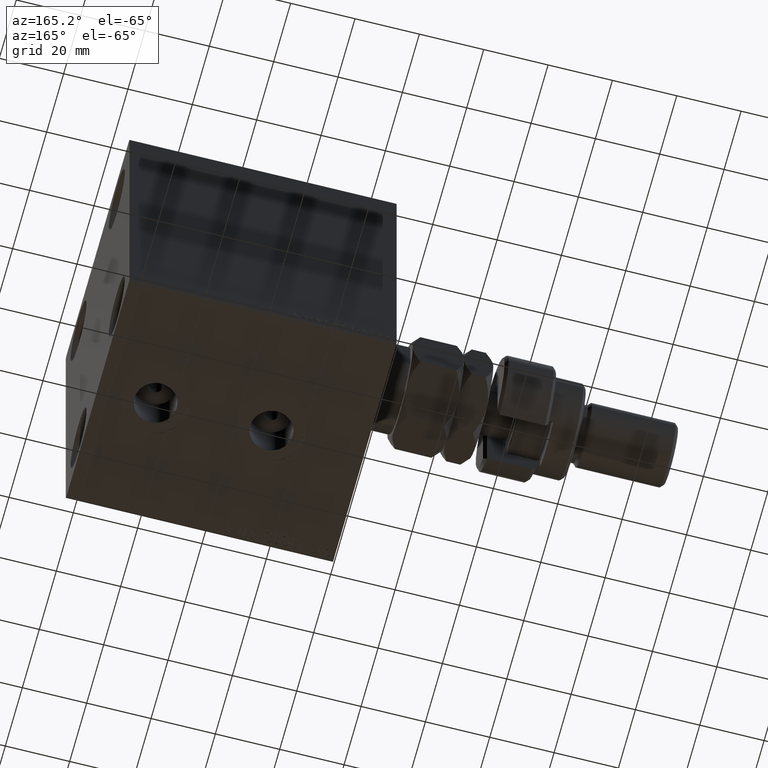
[diagram: clean part render]
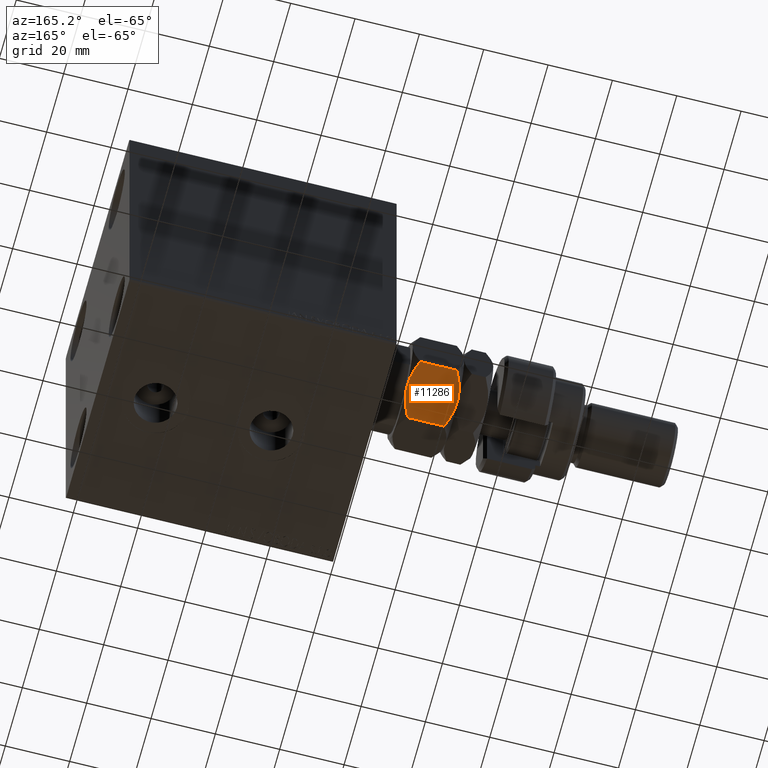
[diagram: same view with one face highlighted and labeled with its STEP entity id]
A machine part, auxiliary view. The second image highlights one B-rep face of the part: STEP entity #11286.
In plain terms, the highlighted planar face has unit normal (0, -0.5, 0.866).
Its self-contained STEP definition (entity closure, byte-faithful):
#241 = CARTESIAN_POINT ( 'NONE',  ( -14.99999999999999822, -5.178726290334378035, 15.14627300035556345 ) ) ;
#484 = CARTESIAN_POINT ( 'NONE',  ( -15.00000000000000178, -0.3816858437404726523, 16.00000000000001066 ) ) ;
#502 = B_SPLINE_CURVE_WITH_KNOTS ( 'NONE', 3,
 ( #701, #44601, #19387, #4577, #44840, #11627, #18900, #38054, #41197, #4816, #19629, #1165 ),
 .UNSPECIFIED., .F., .F.,
 ( 4, 2, 2, 2, 2, 4 ),
 ( 0.03291042869972461704, 0.03403908204310903546, 0.03516773538649344694, 0.03742504207326227683, 0.03968234876003110673, 0.04193965544679993662 ),
 .UNSPECIFIED. ) ;
#701 = CARTESIAN_POINT ( 'NONE',  ( -15.00000000000000000, -3.004629197474317274E-15, 0.000000000000000000 ) ) ;
#1165 = CARTESIAN_POINT ( 'NONE',  ( -15.00000000000000000, 8.660254037844394404, 2.320508075688769711 ) ) ;
#1355 = ORIENTED_EDGE ( 'NONE', *, *, #6247, .T. ) ;
#2556 = CARTESIAN_POINT ( 'NONE',  ( -15.00000000000000000, -3.004629197474317274E-15, 0.000000000000000000 ) ) ;
#2903 = CARTESIAN_POINT ( 'NONE',  ( -15.00000000000000000, 8.660254037844392627, 16.00000000000000000 ) ) ;
#2935 = VERTEX_POINT ( 'NONE', #8752 ) ;
#3116 = ORIENTED_EDGE ( 'NONE', *, *, #3963, .F. ) ;
#3289 = CARTESIAN_POINT ( 'NONE',  ( -15.00000000000000000, 8.660254037844392627, 16.00000000000000000 ) ) ;
#3963 = EDGE_CURVE ( 'NONE', #6178, #36232, #47119, .T. ) ;
#4577 = CARTESIAN_POINT ( 'NONE',  ( -15.00000000000000178, 1.516896874073655255, 0.07181722323989069012 ) ) ;
#4816 = CARTESIAN_POINT ( 'NONE',  ( -14.99999999999999822, 7.300329060372334311, 1.669694153640834955 ) ) ;
#6178 = VERTEX_POINT ( 'NONE', #38714 ) ;
#6247 = EDGE_CURVE ( 'NONE', #6881, #38824, #17844, .T. ) ;
#6881 = VERTEX_POINT ( 'NONE', #34148 ) ;
#7161 = DIRECTION ( 'NONE',  ( -0.000000000000000000, -0.000000000000000000, -1.000000000000000000 ) ) ;
#8752 = CARTESIAN_POINT ( 'NONE',  ( -14.99999999999999645, -8.660254037844389075, 2.320508075688762606 ) ) ;
#9191 = EDGE_CURVE ( 'NONE', #45506, #38824, #502, .T. ) ;
#9370 = CARTESIAN_POINT ( 'NONE',  ( -14.99999999999999645, -3.004629197474316485E-15, 16.00000000000000000 ) ) ;
#10308 = CARTESIAN_POINT ( 'NONE',  ( -14.99999999999999645, -7.987590979791842294, 1.984176546662486329 ) ) ;
#10802 = LINE ( 'NONE', #25604, #14923 ) ;
#11286 = ADVANCED_FACE ( 'NONE', ( #14300 ), #44116, .F. ) ;
#11351 = CARTESIAN_POINT ( 'NONE',  ( -15.00000000000000000, 3.008020699068715054, 15.76423971609371222 ) ) ;
#11627 = CARTESIAN_POINT ( 'NONE',  ( -15.00000000000000000, 3.004330627448767110, 0.2802888644511979388 ) ) ;
#13234 = CARTESIAN_POINT ( 'NONE',  ( -15.00000000000000355, -1.527574731641586192, -3.659182332138578254E-15 ) ) ;
#13716 = CARTESIAN_POINT ( 'NONE',  ( -14.99999999999999645, -8.660254037844389075, 2.320508075688762606 ) ) ;
#14201 = CARTESIAN_POINT ( 'NONE',  ( -14.99999999999999645, -3.008020699068712389, 0.2357602839062925004 ) ) ;
#14300 = FACE_OUTER_BOUND ( 'NONE', #17255, .T. ) ;
#14923 = VECTOR ( 'NONE', #7161, 1000.000000000000000 ) ;
#14986 = CARTESIAN_POINT ( 'NONE',  ( -14.99999999999999822, 5.891877557735400117, 14.89726549906047381 ) ) ;
#15004 = DIRECTION ( 'NONE',  ( -2.003086131649544964E-16, 1.000000000000000000, 0.000000000000000000 ) ) ;
#15927 = CARTESIAN_POINT ( 'NONE',  ( -15.00000000000000000, 7.987590979791845847, 14.01582345333751789 ) ) ;
#16329 = CARTESIAN_POINT ( 'NONE',  ( -15.00000000000000000, 8.660254037844394404, 2.320508075688769711 ) ) ;
#17247 = CARTESIAN_POINT ( 'NONE',  ( -15.00000000000000000, -3.004629197474317274E-15, 0.000000000000000000 ) ) ;
#17255 = EDGE_LOOP ( 'NONE', ( #29104, #30461, #3116, #42129, #1355, #47419 ) ) ;
#17668 = EDGE_CURVE ( 'NONE', #2935, #45506, #35517, .T. ) ;
#17844 = LINE ( 'NONE', #3289, #35393 ) ;
#18900 = CARTESIAN_POINT ( 'NONE',  ( -15.00000000000000000, 3.735400403320778828, 0.4426250994506696901 ) ) ;
#19387 = CARTESIAN_POINT ( 'NONE',  ( -14.99999999999999822, 0.7629267201675393739, 0.01468466084192471960 ) ) ;
#19629 = CARTESIAN_POINT ( 'NONE',  ( -14.99999999999999645, 7.987879721624096874, 1.984320917578621835 ) ) ;
#23052 = CARTESIAN_POINT ( 'NONE',  ( -14.99999999999999645, -8.660254037844389075, 13.67949192431124139 ) ) ;
#23789 = EDGE_CURVE ( 'NONE', #36232, #2935, #10802, .T. ) ;
#24180 = CARTESIAN_POINT ( 'NONE',  ( -14.99999999999999645, -8.660254037844389075, 13.67949192431124139 ) ) ;
#24636 = CARTESIAN_POINT ( 'NONE',  ( -14.99999999999999467, -5.176035048062463062, 0.8528038385778453634 ) ) ;
#24884 = CARTESIAN_POINT ( 'NONE',  ( -14.99999999999999112, -5.891877557735397453, 1.102734500939527518 ) ) ;
#25600 = DIRECTION ( 'NONE',  ( -0.000000000000000000, -0.000000000000000000, -1.000000000000000000 ) ) ;
#25604 = CARTESIAN_POINT ( 'NONE',  ( -14.99999999999999645, -8.660254037844389075, 16.00000000000000000 ) ) ;
#25690 = DIRECTION ( 'NONE',  ( 1.000000000000000000, 2.003086131649544964E-16, -0.000000000000000000 ) ) ;
#26438 = CARTESIAN_POINT ( 'NONE',  ( -14.99999999999999822, -1.890862710942014857, 15.88574619416684541 ) ) ;
#29104 = ORIENTED_EDGE ( 'NONE', *, *, #17668, .F. ) ;
#29369 = CARTESIAN_POINT ( 'NONE',  ( -14.99999999999999645, -3.735400403320779272, 15.55737490054933936 ) ) ;
#29380 = AXIS2_PLACEMENT_3D ( 'NONE', #2903, #25690, #15004 ) ;
#29608 = CARTESIAN_POINT ( 'NONE',  ( -14.99999999999999645, -3.004330627448763114, 15.71971113554880972 ) ) ;
#29848 = CARTESIAN_POINT ( 'NONE',  ( -14.99999999999999822, -1.516896874073658807, 15.92818277676011007 ) ) ;
#30461 = ORIENTED_EDGE ( 'NONE', *, *, #23789, .F. ) ;
#30746 = CARTESIAN_POINT ( 'NONE',  ( -15.00000000000000178, 7.301344312447437979, 14.32986304731390526 ) ) ;
#33962 = CARTESIAN_POINT ( 'NONE',  ( -14.99999999999999645, -7.300329060372325429, 14.33030584635917393 ) ) ;
#34148 = CARTESIAN_POINT ( 'NONE',  ( -15.00000000000000000, 8.660254037844392627, 13.67949192431123429 ) ) ;
#35337 = CARTESIAN_POINT ( 'NONE',  ( -15.00000000000000000, 1.527574731641582639, 16.00000000000000711 ) ) ;
#35393 = VECTOR ( 'NONE', #25600, 1000.000000000000000 ) ;
#35517 = B_SPLINE_CURVE_WITH_KNOTS ( 'NONE', 3,
 ( #13716, #10308, #43062, #24884, #24636, #14201, #13234, #2556 ),
 .UNSPECIFIED., .F., .F.,
 ( 4, 2, 2, 4 ),
 ( 0.02387628527307378290, 0.02613482112973649144, 0.02839335698639919997, 0.03291042869972461704 ),
 .UNSPECIFIED. ) ;
#36232 = VERTEX_POINT ( 'NONE', #24180 ) ;
#37118 = CARTESIAN_POINT ( 'NONE',  ( -14.99999999999999645, -3.004629197474316485E-15, 16.00000000000000000 ) ) ;
#38021 = CARTESIAN_POINT ( 'NONE',  ( -15.00000000000000000, 8.660254037844392627, 13.67949192431123429 ) ) ;
#38054 = CARTESIAN_POINT ( 'NONE',  ( -15.00000000000000000, 5.178726290334382476, 0.8537269996444443176 ) ) ;
#38714 = CARTESIAN_POINT ( 'NONE',  ( -14.99999999999999645, -3.004629197474316485E-15, 16.00000000000000000 ) ) ;
#38824 = VERTEX_POINT ( 'NONE', #16329 ) ;
#41197 = CARTESIAN_POINT ( 'NONE',  ( -14.99999999999999822, 5.890999289811424511, 1.102415080315420015 ) ) ;
#41456 = CARTESIAN_POINT ( 'NONE',  ( -15.00000000000000000, -0.7629267201675442589, 15.98531533915807579 ) ) ;
#42129 = ORIENTED_EDGE ( 'NONE', *, *, #46053, .F. ) ;
#43062 = CARTESIAN_POINT ( 'NONE',  ( -14.99999999999999645, -7.301344312447434426, 1.670136952686098741 ) ) ;
#44116 = PLANE ( 'NONE',  #29380 ) ;
#44148 = CARTESIAN_POINT ( 'NONE',  ( -14.99999999999999467, -5.890999289811420958, 14.89758491968458820 ) ) ;
#44380 = CARTESIAN_POINT ( 'NONE',  ( -14.99999999999999822, -7.987879721624087992, 14.01567908242139282 ) ) ;
#44570 = CARTESIAN_POINT ( 'NONE',  ( -15.00000000000000000, 5.176035048062466615, 15.14719616142215308 ) ) ;
#44601 = CARTESIAN_POINT ( 'NONE',  ( -14.99999999999999822, 0.3816858437404692661, -3.491469808582225998E-15 ) ) ;
#44840 = CARTESIAN_POINT ( 'NONE',  ( -15.00000000000000000, 1.890862710942016633, 0.1142538058331583339 ) ) ;
#45506 = VERTEX_POINT ( 'NONE', #17247 ) ;
#46053 = EDGE_CURVE ( 'NONE', #6881, #6178, #46570, .T. ) ;
#46570 = B_SPLINE_CURVE_WITH_KNOTS ( 'NONE', 3,
 ( #38021, #15927, #30746, #14986, #44570, #11351, #35337, #9370 ),
 .UNSPECIFIED., .F., .F.,
 ( 4, 2, 2, 4 ),
 ( 0.02387628527307378290, 0.02613482112973649490, 0.02839335698639920344, 0.03291042869972462398 ),
 .UNSPECIFIED. ) ;
#47119 = B_SPLINE_CURVE_WITH_KNOTS ( 'NONE', 3,
 ( #37118, #484, #41456, #29848, #26438, #29608, #29369, #241, #44148, #33962, #44380, #23052 ),
 .UNSPECIFIED., .F., .F.,
 ( 4, 2, 2, 2, 2, 4 ),
 ( 0.03291042869972462398, 0.03403908204310903546, 0.03516773538649344694, 0.03742504207326226989, 0.03968234876003109979, 0.04193965544679992274 ),
 .UNSPECIFIED. ) ;
#47419 = ORIENTED_EDGE ( 'NONE', *, *, #9191, .F. ) ;